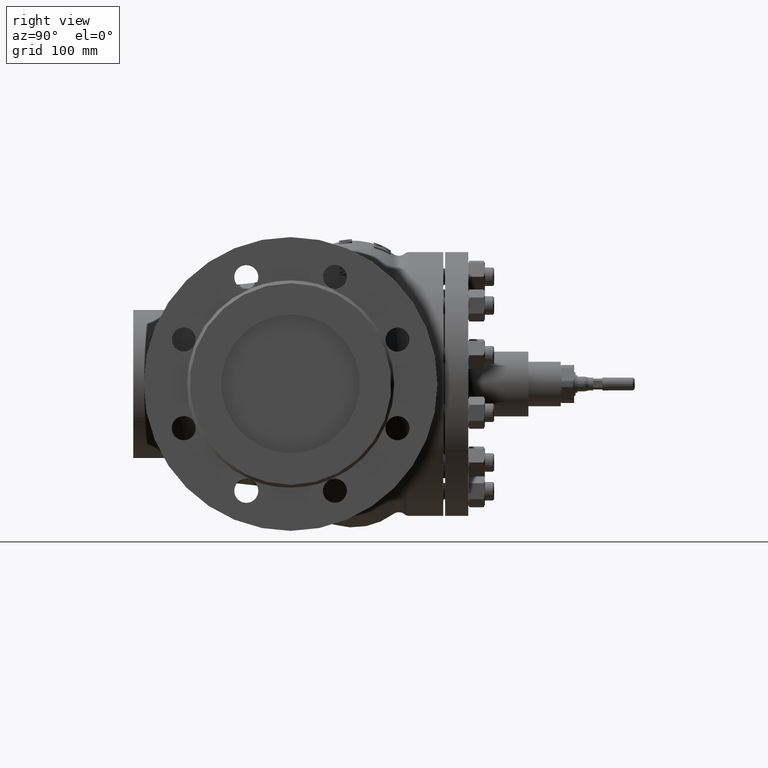
[diagram: clean part render]
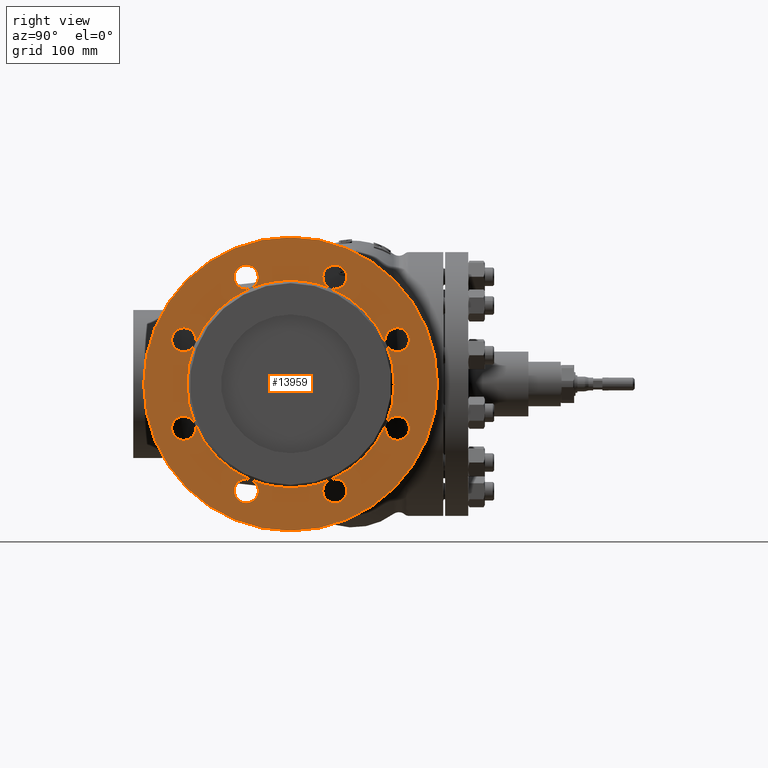
[diagram: same view with one face highlighted and labeled with its STEP entity id]
A machine part, right view. The second image highlights one B-rep face of the part: STEP entity #13959.
In plain terms, the highlighted planar face has unit normal (-1, 0, -0).
Its self-contained STEP definition (entity closure, byte-faithful):
#1205 = VERTEX_POINT ( 'NONE', #127673 ) ;
#2723 = EDGE_CURVE ( 'NONE', #153970, #26207, #129049, .T. ) ;
#3988 = EDGE_CURVE ( 'NONE', #188229, #96343, #77745, .T. ) ;
#4130 = FACE_BOUND ( 'NONE', #182198, .T. ) ;
#4191 = AXIS2_PLACEMENT_3D ( 'NONE', #164577, #180268, #71101 ) ;
#4226 = CARTESIAN_POINT ( 'NONE',  ( 236.9999999999999100, -47.83542904563424300, 115.4849415639116600 ) ) ;
#7035 = AXIS2_PLACEMENT_3D ( 'NONE', #157786, #64337, #173468 ) ;
#7621 = ORIENTED_EDGE ( 'NONE', *, *, #119451, .F. ) ;
#8395 = DIRECTION ( 'NONE',  ( -1.000000000000000000, -0.0000000000000000000, -0.0000000000000000000 ) ) ;
#9030 = FACE_OUTER_BOUND ( 'NONE', #33165, .T. ) ;
#9285 = EDGE_CURVE ( 'NONE', #106672, #188229, #197187, .T. ) ;
#9406 = CIRCLE ( 'NONE', #28515, 111.9999999999999900 ) ;
#10816 = ORIENTED_EDGE ( 'NONE', *, *, #54312, .F. ) ;
#12478 = VERTEX_POINT ( 'NONE', #102499 ) ;
#12781 = DIRECTION ( 'NONE',  ( -0.0000000000000000000, 0.0000000000000000000, 1.000000000000000000 ) ) ;
#13146 = ORIENTED_EDGE ( 'NONE', *, *, #167878, .F. ) ;
#13387 = ORIENTED_EDGE ( 'NONE', *, *, #36559, .F. ) ;
#13959 = ADVANCED_FACE ( 'NONE', ( #9030, #4130 ), #199746, .F. ) ;
#14360 = AXIS2_PLACEMENT_3D ( 'NONE', #51444, #160589, #67147 ) ;
#15046 = CARTESIAN_POINT ( 'NONE',  ( 236.9999999999999100, 115.4849415639104300, -34.83542904563720600 ) ) ;
#15174 = DIRECTION ( 'NONE',  ( 0.0000000000000000000, 0.0000000000000000000, 1.000000000000000000 ) ) ;
#15714 = ORIENTED_EDGE ( 'NONE', *, *, #128020, .F. ) ;
#18159 = VERTEX_POINT ( 'NONE', #38531 ) ;
#19371 = CIRCLE ( 'NONE', #127791, 12.99999999999999800 ) ;
#19917 = DIRECTION ( 'NONE',  ( 0.0000000000000000000, 0.0000000000000000000, 1.000000000000000000 ) ) ;
#21798 = AXIS2_PLACEMENT_3D ( 'NONE', #4226, #113380, #19917 ) ;
#22338 = ORIENTED_EDGE ( 'NONE', *, *, #51190, .T. ) ;
#23478 = ORIENTED_EDGE ( 'NONE', *, *, #41638, .F. ) ;
#24517 = ORIENTED_EDGE ( 'NONE', *, *, #83706, .F. ) ;
#25342 = ORIENTED_EDGE ( 'NONE', *, *, #58920, .F. ) ;
#26207 = VERTEX_POINT ( 'NONE', #154165 ) ;
#27536 = EDGE_CURVE ( 'NONE', #1205, #68223, #189218, .T. ) ;
#27800 = ORIENTED_EDGE ( 'NONE', *, *, #113587, .F. ) ;
#28260 = EDGE_CURVE ( 'NONE', #86030, #76066, #132987, .T. ) ;
#28515 = AXIS2_PLACEMENT_3D ( 'NONE', #202145, #108651, #15174 ) ;
#29707 = CIRCLE ( 'NONE', #128699, 111.9999999999999900 ) ;
#33165 = EDGE_LOOP ( 'NONE', ( #110848, #128795 ) ) ;
#33488 = ORIENTED_EDGE ( 'NONE', *, *, #43396, .F. ) ;
#34388 = AXIS2_PLACEMENT_3D ( 'NONE', #53422, #162556, #69089 ) ;
#35484 = EDGE_CURVE ( 'NONE', #147690, #42216, #166856, .T. ) ;
#35736 = CARTESIAN_POINT ( 'NONE',  ( 236.9999999999999100, -115.4849415639101300, 47.83542904563799400 ) ) ;
#36193 = ORIENTED_EDGE ( 'NONE', *, *, #157008, .F. ) ;
#36533 = CARTESIAN_POINT ( 'NONE',  ( 236.9999999999999100, -115.4849415639101300, 47.83542904563799400 ) ) ;
#36559 = EDGE_CURVE ( 'NONE', #187630, #26207, #91043, .T. ) ;
#37020 = CARTESIAN_POINT ( 'NONE',  ( 236.9999999999999100, -47.83542904563759600, -115.4849415639102700 ) ) ;
#37343 = ORIENTED_EDGE ( 'NONE', *, *, #79887, .F. ) ;
#37356 = AXIS2_PLACEMENT_3D ( 'NONE', #86916, #196111, #102613 ) ;
#37662 = DIRECTION ( 'NONE',  ( 1.000000000000000000, 0.0000000000000000000, 0.0000000000000000000 ) ) ;
#37890 = ORIENTED_EDGE ( 'NONE', *, *, #135711, .T. ) ;
#38531 = CARTESIAN_POINT ( 'NONE',  ( 236.9999999999999100, 115.4849415639111600, 60.83542904563545100 ) ) ;
#39542 = CARTESIAN_POINT ( 'NONE',  ( 236.9999999999999100, -42.86054442489128000, -103.4745076412635900 ) ) ;
#40428 = EDGE_CURVE ( 'NONE', #76066, #86030, #147057, .T. ) ;
#40728 = ORIENTED_EDGE ( 'NONE', *, *, #108809, .F. ) ;
#41527 = AXIS2_PLACEMENT_3D ( 'NONE', #64165, #173299, #79808 ) ;
#41638 = EDGE_CURVE ( 'NONE', #91563, #171337, #149419, .T. ) ;
#42012 = VERTEX_POINT ( 'NONE', #128911 ) ;
#42069 = CIRCLE ( 'NONE', #7035, 12.99999999999999800 ) ;
#42216 = VERTEX_POINT ( 'NONE', #83146 ) ;
#42385 = VERTEX_POINT ( 'NONE', #197058 ) ;
#42866 = CARTESIAN_POINT ( 'NONE',  ( 236.9999999999999100, -47.83542904563759600, -128.4849415639102700 ) ) ;
#43396 = EDGE_CURVE ( 'NONE', #26207, #42012, #156682, .T. ) ;
#43487 = CIRCLE ( 'NONE', #76939, 111.9999999999999900 ) ;
#43596 = EDGE_CURVE ( 'NONE', #42385, #104419, #73666, .T. ) ;
#44690 = ORIENTED_EDGE ( 'NONE', *, *, #141609, .T. ) ;
#44998 = CARTESIAN_POINT ( 'NONE',  ( 236.9999999999999100, 115.4849415639111600, 47.83542904563545100 ) ) ;
#47145 = CARTESIAN_POINT ( 'NONE',  ( 236.9999999999999100, 0.0000000000000000000, 0.0000000000000000000 ) ) ;
#47374 = AXIS2_PLACEMENT_3D ( 'NONE', #90691, #199864, #106390 ) ;
#49218 = AXIS2_PLACEMENT_3D ( 'NONE', #157209, #63776, #172912 ) ;
#49427 = DIRECTION ( 'NONE',  ( 1.000000000000000000, 0.0000000000000000000, 0.0000000000000000000 ) ) ;
#49597 = CARTESIAN_POINT ( 'NONE',  ( 236.9999999999999100, -47.83542904563759600, -102.4849415639102700 ) ) ;
#49704 = CARTESIAN_POINT ( 'NONE',  ( 236.9999999999999100, 1.371604415045035600E-014, -111.9999999999999900 ) ) ;
#51190 = EDGE_CURVE ( 'NONE', #104419, #1205, #75807, .T. ) ;
#51440 = DIRECTION ( 'NONE',  ( 0.0000000000000000000, 0.0000000000000000000, 1.000000000000000000 ) ) ;
#51444 = CARTESIAN_POINT ( 'NONE',  ( 236.9999999999999100, 0.0000000000000000000, 0.0000000000000000000 ) ) ;
#51618 = EDGE_CURVE ( 'NONE', #68530, #91563, #195468, .T. ) ;
#52055 = CIRCLE ( 'NONE', #81454, 12.99999999999999800 ) ;
#52246 = DIRECTION ( 'NONE',  ( 0.0000000000000000000, 0.0000000000000000000, 1.000000000000000000 ) ) ;
#52737 = DIRECTION ( 'NONE',  ( 0.0000000000000000000, -2.668805347656626500E-015, 1.000000000000000000 ) ) ;
#53422 = CARTESIAN_POINT ( 'NONE',  ( 236.9999999999999100, -47.83542904563759600, -115.4849415639102700 ) ) ;
#54312 = EDGE_CURVE ( 'NONE', #112593, #18159, #136692, .T. ) ;
#56279 = AXIS2_PLACEMENT_3D ( 'NONE', #165966, #72493, #181662 ) ;
#57451 = VERTEX_POINT ( 'NONE', #190041 ) ;
#58579 = AXIS2_PLACEMENT_3D ( 'NONE', #186740, #93243, #202415 ) ;
#58920 = EDGE_CURVE ( 'NONE', #153970, #84269, #95025, .T. ) ;
#59792 = CARTESIAN_POINT ( 'NONE',  ( 236.9999999999999100, 0.0000000000000000000, 0.0000000000000000000 ) ) ;
#60693 = DIRECTION ( 'NONE',  ( 0.0000000000000000000, 0.0000000000000000000, 1.000000000000000000 ) ) ;
#60831 = CARTESIAN_POINT ( 'NONE',  ( 236.9999999999999100, -115.4849415639101300, 60.83542904563798700 ) ) ;
#61007 = CARTESIAN_POINT ( 'NONE',  ( 236.9999999999999100, -115.4849415639101300, 47.83542904563799400 ) ) ;
#61163 = ORIENTED_EDGE ( 'NONE', *, *, #71652, .F. ) ;
#62855 = DIRECTION ( 'NONE',  ( 0.0000000000000000000, 0.0000000000000000000, 1.000000000000000000 ) ) ;
#63269 = CARTESIAN_POINT ( 'NONE',  ( 236.9999999999999100, 0.0000000000000000000, 0.0000000000000000000 ) ) ;
#63776 = DIRECTION ( 'NONE',  ( 1.000000000000000000, 0.0000000000000000000, 0.0000000000000000000 ) ) ;
#64165 = CARTESIAN_POINT ( 'NONE',  ( 236.9999999999999100, -115.4849415639111600, -47.83542904563545100 ) ) ;
#64337 = DIRECTION ( 'NONE',  ( 1.000000000000000000, 0.0000000000000000000, 0.0000000000000000000 ) ) ;
#64576 = EDGE_CURVE ( 'NONE', #42216, #42385, #134346, .T. ) ;
#65333 = CARTESIAN_POINT ( 'NONE',  ( 236.9999999999999100, -115.4849415639101300, 34.83542904563799400 ) ) ;
#65410 = CARTESIAN_POINT ( 'NONE',  ( 236.9999999999999100, -103.4745076412634600, 42.86054442489163600 ) ) ;
#66399 = AXIS2_PLACEMENT_3D ( 'NONE', #168454, #74977, #184144 ) ;
#66751 = ORIENTED_EDGE ( 'NONE', *, *, #27536, .T. ) ;
#67147 = DIRECTION ( 'NONE',  ( 0.0000000000000000000, 0.0000000000000000000, 1.000000000000000000 ) ) ;
#68223 = VERTEX_POINT ( 'NONE', #125413 ) ;
#68404 = ORIENTED_EDGE ( 'NONE', *, *, #169724, .F. ) ;
#68530 = VERTEX_POINT ( 'NONE', #95377 ) ;
#68834 = VERTEX_POINT ( 'NONE', #49704 ) ;
#68859 = VERTEX_POINT ( 'NONE', #158845 ) ;
#69054 = CARTESIAN_POINT ( 'NONE',  ( 236.9999999999999100, 0.0000000000000000000, 0.0000000000000000000 ) ) ;
#69089 = DIRECTION ( 'NONE',  ( 0.0000000000000000000, 0.0000000000000000000, 1.000000000000000000 ) ) ;
#69166 = AXIS2_PLACEMENT_3D ( 'NONE', #186836, #93339, #202513 ) ;
#71096 = CARTESIAN_POINT ( 'NONE',  ( 236.9999999999999100, 47.83542904563838500, 115.4849415639099400 ) ) ;
#71101 = DIRECTION ( 'NONE',  ( 0.0000000000000000000, 0.0000000000000000000, 1.000000000000000000 ) ) ;
#71652 = EDGE_CURVE ( 'NONE', #12478, #57451, #197593, .T. ) ;
#72493 = DIRECTION ( 'NONE',  ( 1.000000000000000000, 0.0000000000000000000, 0.0000000000000000000 ) ) ;
#72811 = CARTESIAN_POINT ( 'NONE',  ( 236.9999999999999100, 0.0000000000000000000, 0.0000000000000000000 ) ) ;
#73152 = CARTESIAN_POINT ( 'NONE',  ( 236.9999999999999100, 115.4849415639104300, -47.83542904563719800 ) ) ;
#73414 = AXIS2_PLACEMENT_3D ( 'NONE', #47145, #156290, #62855 ) ;
#73666 = CIRCLE ( 'NONE', #121316, 111.9999999999999900 ) ;
#74563 = AXIS2_PLACEMENT_3D ( 'NONE', #142852, #49427, #158572 ) ;
#74977 = DIRECTION ( 'NONE',  ( -1.000000000000000000, -0.0000000000000000000, -0.0000000000000000000 ) ) ;
#75460 = DIRECTION ( 'NONE',  ( 0.0000000000000000000, 0.0000000000000000000, 1.000000000000000000 ) ) ;
#75807 = CIRCLE ( 'NONE', #14360, 111.9999999999999900 ) ;
#76066 = VERTEX_POINT ( 'NONE', #200809 ) ;
#76640 = DIRECTION ( 'NONE',  ( 1.000000000000000000, 0.0000000000000000000, 0.0000000000000000000 ) ) ;
#76661 = DIRECTION ( 'NONE',  ( 0.0000000000000000000, 1.067522139062650700E-015, 1.000000000000000000 ) ) ;
#76939 = AXIS2_PLACEMENT_3D ( 'NONE', #101862, #8395, #117562 ) ;
#77745 = CIRCLE ( 'NONE', #161104, 12.99999999999999800 ) ;
#78654 = DIRECTION ( 'NONE',  ( 1.000000000000000000, 0.0000000000000000000, 0.0000000000000000000 ) ) ;
#78903 = DIRECTION ( 'NONE',  ( 0.0000000000000000000, 0.0000000000000000000, 1.000000000000000000 ) ) ;
#79183 = DIRECTION ( 'NONE',  ( 0.0000000000000000000, 0.0000000000000000000, 1.000000000000000000 ) ) ;
#79293 = CARTESIAN_POINT ( 'NONE',  ( 236.9999999999999100, 47.83542904563505300, -115.4849415639113300 ) ) ;
#79808 = DIRECTION ( 'NONE',  ( 0.0000000000000000000, 1.067522139062650700E-015, 1.000000000000000000 ) ) ;
#79887 = EDGE_CURVE ( 'NONE', #18159, #104419, #175297, .T. ) ;
#80132 = AXIS2_PLACEMENT_3D ( 'NONE', #90750, #199925, #106446 ) ;
#81454 = AXIS2_PLACEMENT_3D ( 'NONE', #37020, #146159, #52737 ) ;
#82340 = DIRECTION ( 'NONE',  ( 1.000000000000000000, 0.0000000000000000000, 0.0000000000000000000 ) ) ;
#82609 = AXIS2_PLACEMENT_3D ( 'NONE', #79293, #188506, #95000 ) ;
#83146 = CARTESIAN_POINT ( 'NONE',  ( 236.9999999999999100, 47.83542904563838500, 128.4849415639099300 ) ) ;
#83706 = EDGE_CURVE ( 'NONE', #179525, #1205, #116538, .T. ) ;
#84129 = CARTESIAN_POINT ( 'NONE',  ( 236.9999999999999100, 0.0000000000000000000, 0.0000000000000000000 ) ) ;
#84269 = VERTEX_POINT ( 'NONE', #60831 ) ;
#84718 = DIRECTION ( 'NONE',  ( 0.0000000000000000000, 0.0000000000000000000, 1.000000000000000000 ) ) ;
#86030 = VERTEX_POINT ( 'NONE', #178716 ) ;
#86762 = DIRECTION ( 'NONE',  ( 0.0000000000000000000, 0.0000000000000000000, 1.000000000000000000 ) ) ;
#86916 = CARTESIAN_POINT ( 'NONE',  ( 236.9999999999999100, 0.0000000000000000000, 0.0000000000000000000 ) ) ;
#88473 = DIRECTION ( 'NONE',  ( 0.0000000000000000000, 0.0000000000000000000, 1.000000000000000000 ) ) ;
#88806 = DIRECTION ( 'NONE',  ( 0.0000000000000000000, 0.0000000000000000000, 1.000000000000000000 ) ) ;
#89963 = EDGE_CURVE ( 'NONE', #68834, #96343, #138242, .T. ) ;
#90691 = CARTESIAN_POINT ( 'NONE',  ( 236.9999999999999100, 115.4849415639111600, 47.83542904563545100 ) ) ;
#90750 = CARTESIAN_POINT ( 'NONE',  ( 236.9999999999999100, 47.83542904563505300, -115.4849415639113300 ) ) ;
#91043 = CIRCLE ( 'NONE', #21798, 12.99999999999999800 ) ;
#91563 = VERTEX_POINT ( 'NONE', #132742 ) ;
#93143 = CIRCLE ( 'NONE', #201910, 12.99999999999999800 ) ;
#93243 = DIRECTION ( 'NONE',  ( 1.000000000000000000, 0.0000000000000000000, 0.0000000000000000000 ) ) ;
#93339 = DIRECTION ( 'NONE',  ( 1.000000000000000000, 0.0000000000000000000, 0.0000000000000000000 ) ) ;
#93795 = CIRCLE ( 'NONE', #47374, 12.99999999999999800 ) ;
#94886 = CARTESIAN_POINT ( 'NONE',  ( 236.9999999999999100, -47.83542904563759600, -115.4849415639102700 ) ) ;
#95000 = DIRECTION ( 'NONE',  ( 0.0000000000000000000, 0.0000000000000000000, 1.000000000000000000 ) ) ;
#95025 = CIRCLE ( 'NONE', #191051, 12.99999999999999800 ) ;
#95377 = CARTESIAN_POINT ( 'NONE',  ( 236.9999999999999100, -115.4849415639111600, -60.83542904563545100 ) ) ;
#96343 = VERTEX_POINT ( 'NONE', #39542 ) ;
#99838 = DIRECTION ( 'NONE',  ( 0.0000000000000000000, 0.0000000000000000000, 1.000000000000000000 ) ) ;
#101862 = CARTESIAN_POINT ( 'NONE',  ( 236.9999999999999100, 0.0000000000000000000, 0.0000000000000000000 ) ) ;
#102499 = CARTESIAN_POINT ( 'NONE',  ( 236.9999999999999100, 47.83542904563505300, -128.4849415639113200 ) ) ;
#102613 = DIRECTION ( 'NONE',  ( 0.0000000000000000000, 0.0000000000000000000, 1.000000000000000000 ) ) ;
#103318 = EDGE_CURVE ( 'NONE', #96343, #106672, #52055, .T. ) ;
#104419 = VERTEX_POINT ( 'NONE', #184272 ) ;
#106266 = DIRECTION ( 'NONE',  ( -1.000000000000000000, 0.0000000000000000000, -0.0000000000000000000 ) ) ;
#106390 = DIRECTION ( 'NONE',  ( 0.0000000000000000000, 1.067522139062650700E-015, 1.000000000000000000 ) ) ;
#106446 = DIRECTION ( 'NONE',  ( 0.0000000000000000000, 0.0000000000000000000, 1.000000000000000000 ) ) ;
#106490 = CIRCLE ( 'NONE', #151656, 111.9999999999999900 ) ;
#106672 = VERTEX_POINT ( 'NONE', #49597 ) ;
#108651 = DIRECTION ( 'NONE',  ( -1.000000000000000000, -0.0000000000000000000, -0.0000000000000000000 ) ) ;
#108809 = EDGE_CURVE ( 'NONE', #42385, #147690, #42069, .T. ) ;
#110848 = ORIENTED_EDGE ( 'NONE', *, *, #40428, .F. ) ;
#112283 = EDGE_CURVE ( 'NONE', #26207, #113918, #29707, .T. ) ;
#112593 = VERTEX_POINT ( 'NONE', #140901 ) ;
#113380 = DIRECTION ( 'NONE',  ( 1.000000000000000000, 0.0000000000000000000, 0.0000000000000000000 ) ) ;
#113416 = ORIENTED_EDGE ( 'NONE', *, *, #112283, .T. ) ;
#113587 = EDGE_CURVE ( 'NONE', #1205, #68859, #93143, .T. ) ;
#113918 = VERTEX_POINT ( 'NONE', #140066 ) ;
#115101 = AXIS2_PLACEMENT_3D ( 'NONE', #44998, #154123, #60693 ) ;
#115723 = AXIS2_PLACEMENT_3D ( 'NONE', #36533, #145675, #52246 ) ;
#116538 = CIRCLE ( 'NONE', #148941, 12.99999999999999800 ) ;
#117562 = DIRECTION ( 'NONE',  ( 0.0000000000000000000, 0.0000000000000000000, 1.000000000000000000 ) ) ;
#117789 = ORIENTED_EDGE ( 'NONE', *, *, #125870, .F. ) ;
#119451 = EDGE_CURVE ( 'NONE', #189386, #153970, #164079, .T. ) ;
#119843 = AXIS2_PLACEMENT_3D ( 'NONE', #172149, #78654, #187849 ) ;
#120753 = AXIS2_PLACEMENT_3D ( 'NONE', #136968, #106266, #12781 ) ;
#121316 = AXIS2_PLACEMENT_3D ( 'NONE', #63269, #172405, #78903 ) ;
#124161 = ORIENTED_EDGE ( 'NONE', *, *, #197906, .F. ) ;
#125413 = CARTESIAN_POINT ( 'NONE',  ( 236.9999999999999100, 42.86054442488900000, -103.4745076412645400 ) ) ;
#125870 = EDGE_CURVE ( 'NONE', #68859, #179525, #180903, .T. ) ;
#126293 = AXIS2_PLACEMENT_3D ( 'NONE', #175839, #82340, #191536 ) ;
#127002 = ORIENTED_EDGE ( 'NONE', *, *, #35484, .F. ) ;
#127673 = CARTESIAN_POINT ( 'NONE',  ( 236.9999999999999100, 103.4745076412637400, -42.86054442489092500 ) ) ;
#127791 = AXIS2_PLACEMENT_3D ( 'NONE', #131134, #37662, #146809 ) ;
#128020 = EDGE_CURVE ( 'NONE', #171337, #68530, #188171, .T. ) ;
#128699 = AXIS2_PLACEMENT_3D ( 'NONE', #59792, #168936, #75460 ) ;
#128795 = ORIENTED_EDGE ( 'NONE', *, *, #28260, .F. ) ;
#128911 = CARTESIAN_POINT ( 'NONE',  ( 236.9999999999999100, -47.83542904563424300, 128.4849415639116600 ) ) ;
#129049 = CIRCLE ( 'NONE', #4191, 111.9999999999999900 ) ;
#131134 = CARTESIAN_POINT ( 'NONE',  ( 236.9999999999999100, -47.83542904563424300, 115.4849415639116600 ) ) ;
#132742 = CARTESIAN_POINT ( 'NONE',  ( 236.9999999999999100, -103.4745076412643800, -42.86054442488936200 ) ) ;
#132987 = CIRCLE ( 'NONE', #37356, 158.7500000000000000 ) ;
#134346 = CIRCLE ( 'NONE', #189882, 12.99999999999999800 ) ;
#135653 = EDGE_CURVE ( 'NONE', #42012, #187630, #19371, .T. ) ;
#135711 = EDGE_CURVE ( 'NONE', #113918, #42385, #175642, .T. ) ;
#136692 = CIRCLE ( 'NONE', #115101, 12.99999999999999800 ) ;
#136968 = CARTESIAN_POINT ( 'NONE',  ( 236.9999999999999100, 111.9999999999999900, 0.0000000000000000000 ) ) ;
#138242 = CIRCLE ( 'NONE', #73414, 111.9999999999999900 ) ;
#140066 = CARTESIAN_POINT ( 'NONE',  ( 236.9999999999999100, 0.0000000000000000000, 111.9999999999999900 ) ) ;
#140901 = CARTESIAN_POINT ( 'NONE',  ( 236.9999999999999100, 115.4849415639111600, 34.83542904563545800 ) ) ;
#141609 = EDGE_CURVE ( 'NONE', #96343, #91563, #9406, .T. ) ;
#142852 = CARTESIAN_POINT ( 'NONE',  ( 236.9999999999999100, 47.83542904563505300, -115.4849415639113300 ) ) ;
#144857 = DIRECTION ( 'NONE',  ( 1.000000000000000000, 0.0000000000000000000, 0.0000000000000000000 ) ) ;
#144963 = EDGE_CURVE ( 'NONE', #91563, #153970, #43487, .T. ) ;
#145675 = DIRECTION ( 'NONE',  ( 1.000000000000000000, 0.0000000000000000000, 0.0000000000000000000 ) ) ;
#146159 = DIRECTION ( 'NONE',  ( 1.000000000000000000, 0.0000000000000000000, 0.0000000000000000000 ) ) ;
#146809 = DIRECTION ( 'NONE',  ( 0.0000000000000000000, 0.0000000000000000000, 1.000000000000000000 ) ) ;
#147057 = CIRCLE ( 'NONE', #66399, 158.7500000000000000 ) ;
#147690 = VERTEX_POINT ( 'NONE', #186807 ) ;
#148684 = AXIS2_PLACEMENT_3D ( 'NONE', #69054, #178215, #84718 ) ;
#148941 = AXIS2_PLACEMENT_3D ( 'NONE', #73152, #182340, #88806 ) ;
#149419 = CIRCLE ( 'NONE', #41527, 12.99999999999999800 ) ;
#151656 = AXIS2_PLACEMENT_3D ( 'NONE', #84129, #193326, #99838 ) ;
#153970 = VERTEX_POINT ( 'NONE', #65410 ) ;
#154123 = DIRECTION ( 'NONE',  ( 1.000000000000000000, 0.0000000000000000000, 0.0000000000000000000 ) ) ;
#154165 = CARTESIAN_POINT ( 'NONE',  ( 236.9999999999999100, -42.86054442488828200, 103.4745076412648400 ) ) ;
#155271 = CARTESIAN_POINT ( 'NONE',  ( 236.9999999999999100, -115.4849415639111600, -34.83542904563545800 ) ) ;
#156212 = EDGE_CURVE ( 'NONE', #68223, #68834, #106490, .T. ) ;
#156290 = DIRECTION ( 'NONE',  ( -1.000000000000000000, -0.0000000000000000000, -0.0000000000000000000 ) ) ;
#156682 = CIRCLE ( 'NONE', #58579, 12.99999999999999800 ) ;
#157008 = EDGE_CURVE ( 'NONE', #68223, #12478, #169957, .T. ) ;
#157209 = CARTESIAN_POINT ( 'NONE',  ( 236.9999999999999100, -115.4849415639111600, -47.83542904563545100 ) ) ;
#157786 = CARTESIAN_POINT ( 'NONE',  ( 236.9999999999999100, 47.83542904563838500, 115.4849415639099400 ) ) ;
#157792 = ORIENTED_EDGE ( 'NONE', *, *, #51618, .F. ) ;
#158572 = DIRECTION ( 'NONE',  ( 0.0000000000000000000, 1.067522139062650700E-015, 1.000000000000000000 ) ) ;
#158845 = CARTESIAN_POINT ( 'NONE',  ( 236.9999999999999100, 115.4849415639104300, -60.83542904563719800 ) ) ;
#158897 = AXIS2_PLACEMENT_3D ( 'NONE', #61007, #170147, #76661 ) ;
#159597 = ORIENTED_EDGE ( 'NONE', *, *, #43596, .T. ) ;
#159666 = CIRCLE ( 'NONE', #115723, 12.99999999999999800 ) ;
#160589 = DIRECTION ( 'NONE',  ( -1.000000000000000000, -0.0000000000000000000, -0.0000000000000000000 ) ) ;
#161104 = AXIS2_PLACEMENT_3D ( 'NONE', #94886, #172686, #79183 ) ;
#161662 = CARTESIAN_POINT ( 'NONE',  ( 236.9999999999999100, -47.83542904563424300, 102.4849415639116600 ) ) ;
#162556 = DIRECTION ( 'NONE',  ( 1.000000000000000000, 0.0000000000000000000, 0.0000000000000000000 ) ) ;
#164079 = CIRCLE ( 'NONE', #158897, 12.99999999999999800 ) ;
#164175 = ORIENTED_EDGE ( 'NONE', *, *, #144963, .T. ) ;
#164384 = ORIENTED_EDGE ( 'NONE', *, *, #2723, .T. ) ;
#164577 = CARTESIAN_POINT ( 'NONE',  ( 236.9999999999999100, 0.0000000000000000000, 0.0000000000000000000 ) ) ;
#165966 = CARTESIAN_POINT ( 'NONE',  ( 236.9999999999999100, -115.4849415639111600, -47.83542904563545100 ) ) ;
#166856 = CIRCLE ( 'NONE', #119843, 12.99999999999999800 ) ;
#167878 = EDGE_CURVE ( 'NONE', #57451, #68223, #169566, .T. ) ;
#168454 = CARTESIAN_POINT ( 'NONE',  ( 236.9999999999999100, 0.0000000000000000000, 0.0000000000000000000 ) ) ;
#168936 = DIRECTION ( 'NONE',  ( -1.000000000000000000, -0.0000000000000000000, -0.0000000000000000000 ) ) ;
#169566 = CIRCLE ( 'NONE', #82609, 12.99999999999999800 ) ;
#169724 = EDGE_CURVE ( 'NONE', #104419, #112593, #93795, .T. ) ;
#169957 = CIRCLE ( 'NONE', #74563, 12.99999999999999800 ) ;
#170129 = CARTESIAN_POINT ( 'NONE',  ( 236.9999999999999100, 115.4849415639104300, -47.83542904563719800 ) ) ;
#170147 = DIRECTION ( 'NONE',  ( 1.000000000000000000, 0.0000000000000000000, 0.0000000000000000000 ) ) ;
#171337 = VERTEX_POINT ( 'NONE', #155271 ) ;
#171646 = ORIENTED_EDGE ( 'NONE', *, *, #103318, .F. ) ;
#172149 = CARTESIAN_POINT ( 'NONE',  ( 236.9999999999999100, 47.83542904563838500, 115.4849415639099400 ) ) ;
#172405 = DIRECTION ( 'NONE',  ( -1.000000000000000000, -0.0000000000000000000, -0.0000000000000000000 ) ) ;
#172567 = ORIENTED_EDGE ( 'NONE', *, *, #9285, .F. ) ;
#172686 = DIRECTION ( 'NONE',  ( 1.000000000000000000, 0.0000000000000000000, 0.0000000000000000000 ) ) ;
#172912 = DIRECTION ( 'NONE',  ( 0.0000000000000000000, 0.0000000000000000000, 1.000000000000000000 ) ) ;
#173299 = DIRECTION ( 'NONE',  ( 1.000000000000000000, 0.0000000000000000000, 0.0000000000000000000 ) ) ;
#173468 = DIRECTION ( 'NONE',  ( 0.0000000000000000000, 3.736327486719277500E-015, 1.000000000000000000 ) ) ;
#175297 = CIRCLE ( 'NONE', #69166, 12.99999999999999800 ) ;
#175642 = CIRCLE ( 'NONE', #148684, 111.9999999999999900 ) ;
#175839 = CARTESIAN_POINT ( 'NONE',  ( 236.9999999999999100, 115.4849415639104300, -47.83542904563719800 ) ) ;
#177240 = AXIS2_PLACEMENT_3D ( 'NONE', #72811, #181998, #88473 ) ;
#178215 = DIRECTION ( 'NONE',  ( -1.000000000000000000, -0.0000000000000000000, -0.0000000000000000000 ) ) ;
#178716 = CARTESIAN_POINT ( 'NONE',  ( 236.9999999999999100, 1.944126793646423300E-014, -158.7500000000000000 ) ) ;
#179525 = VERTEX_POINT ( 'NONE', #15046 ) ;
#180263 = DIRECTION ( 'NONE',  ( 1.000000000000000000, 0.0000000000000000000, 0.0000000000000000000 ) ) ;
#180268 = DIRECTION ( 'NONE',  ( -1.000000000000000000, -0.0000000000000000000, -0.0000000000000000000 ) ) ;
#180903 = CIRCLE ( 'NONE', #126293, 12.99999999999999800 ) ;
#181662 = DIRECTION ( 'NONE',  ( 0.0000000000000000000, 0.0000000000000000000, 1.000000000000000000 ) ) ;
#181809 = ORIENTED_EDGE ( 'NONE', *, *, #135653, .F. ) ;
#181996 = ORIENTED_EDGE ( 'NONE', *, *, #156212, .T. ) ;
#181998 = DIRECTION ( 'NONE',  ( -1.000000000000000000, -0.0000000000000000000, -0.0000000000000000000 ) ) ;
#182198 = EDGE_LOOP ( 'NONE', ( #113416, #37890, #198258, #127002, #40728, #159597, #37343, #10816, #68404, #22338, #24517, #117789, #27800, #66751, #13146, #61163, #36193, #181996, #201717, #191433, #172567, #171646, #44690, #157792, #15714, #23478, #164175, #7621, #124161, #25342, #164384, #13387, #181809, #33488 ) ) ;
#182340 = DIRECTION ( 'NONE',  ( 1.000000000000000000, 0.0000000000000000000, 0.0000000000000000000 ) ) ;
#184144 = DIRECTION ( 'NONE',  ( 0.0000000000000000000, 0.0000000000000000000, 1.000000000000000000 ) ) ;
#184272 = CARTESIAN_POINT ( 'NONE',  ( 236.9999999999999100, 103.4745076412643800, 42.86054442488936200 ) ) ;
#185826 = DIRECTION ( 'NONE',  ( 0.0000000000000000000, 0.0000000000000000000, 1.000000000000000000 ) ) ;
#186740 = CARTESIAN_POINT ( 'NONE',  ( 236.9999999999999100, -47.83542904563424300, 115.4849415639116600 ) ) ;
#186807 = CARTESIAN_POINT ( 'NONE',  ( 236.9999999999999100, 47.83542904563838500, 102.4849415639099400 ) ) ;
#186836 = CARTESIAN_POINT ( 'NONE',  ( 236.9999999999999100, 115.4849415639111600, 47.83542904563545100 ) ) ;
#187630 = VERTEX_POINT ( 'NONE', #161662 ) ;
#187849 = DIRECTION ( 'NONE',  ( 0.0000000000000000000, 0.0000000000000000000, 1.000000000000000000 ) ) ;
#188171 = CIRCLE ( 'NONE', #49218, 12.99999999999999800 ) ;
#188229 = VERTEX_POINT ( 'NONE', #42866 ) ;
#188506 = DIRECTION ( 'NONE',  ( 1.000000000000000000, 0.0000000000000000000, 0.0000000000000000000 ) ) ;
#189218 = CIRCLE ( 'NONE', #177240, 111.9999999999999900 ) ;
#189386 = VERTEX_POINT ( 'NONE', #65333 ) ;
#189882 = AXIS2_PLACEMENT_3D ( 'NONE', #71096, #180263, #86762 ) ;
#190041 = CARTESIAN_POINT ( 'NONE',  ( 236.9999999999999100, 47.83542904563505300, -102.4849415639113300 ) ) ;
#191051 = AXIS2_PLACEMENT_3D ( 'NONE', #35736, #144857, #51440 ) ;
#191433 = ORIENTED_EDGE ( 'NONE', *, *, #3988, .F. ) ;
#191536 = DIRECTION ( 'NONE',  ( 0.0000000000000000000, 0.0000000000000000000, 1.000000000000000000 ) ) ;
#193326 = DIRECTION ( 'NONE',  ( -1.000000000000000000, -0.0000000000000000000, -0.0000000000000000000 ) ) ;
#195468 = CIRCLE ( 'NONE', #56279, 12.99999999999999800 ) ;
#196111 = DIRECTION ( 'NONE',  ( -1.000000000000000000, -0.0000000000000000000, -0.0000000000000000000 ) ) ;
#197058 = CARTESIAN_POINT ( 'NONE',  ( 236.9999999999999100, 42.86054442489199800, 103.4745076412633000 ) ) ;
#197187 = CIRCLE ( 'NONE', #34388, 12.99999999999999800 ) ;
#197593 = CIRCLE ( 'NONE', #80132, 12.99999999999999800 ) ;
#197906 = EDGE_CURVE ( 'NONE', #84269, #189386, #159666, .T. ) ;
#198258 = ORIENTED_EDGE ( 'NONE', *, *, #64576, .F. ) ;
#199746 = PLANE ( 'NONE',  #120753 ) ;
#199864 = DIRECTION ( 'NONE',  ( 1.000000000000000000, 0.0000000000000000000, 0.0000000000000000000 ) ) ;
#199925 = DIRECTION ( 'NONE',  ( 1.000000000000000000, 0.0000000000000000000, 0.0000000000000000000 ) ) ;
#200809 = CARTESIAN_POINT ( 'NONE',  ( 236.9999999999999100, 0.0000000000000000000, 158.7500000000000000 ) ) ;
#201717 = ORIENTED_EDGE ( 'NONE', *, *, #89963, .T. ) ;
#201910 = AXIS2_PLACEMENT_3D ( 'NONE', #170129, #76640, #185826 ) ;
#202145 = CARTESIAN_POINT ( 'NONE',  ( 236.9999999999999100, 0.0000000000000000000, 0.0000000000000000000 ) ) ;
#202415 = DIRECTION ( 'NONE',  ( 0.0000000000000000000, 0.0000000000000000000, 1.000000000000000000 ) ) ;
#202513 = DIRECTION ( 'NONE',  ( 0.0000000000000000000, 0.0000000000000000000, 1.000000000000000000 ) ) ;